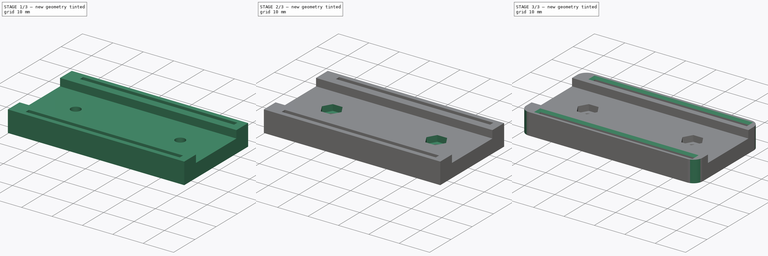
[diagram: build sequence overview — one tinted view per stage of 3, left to right]
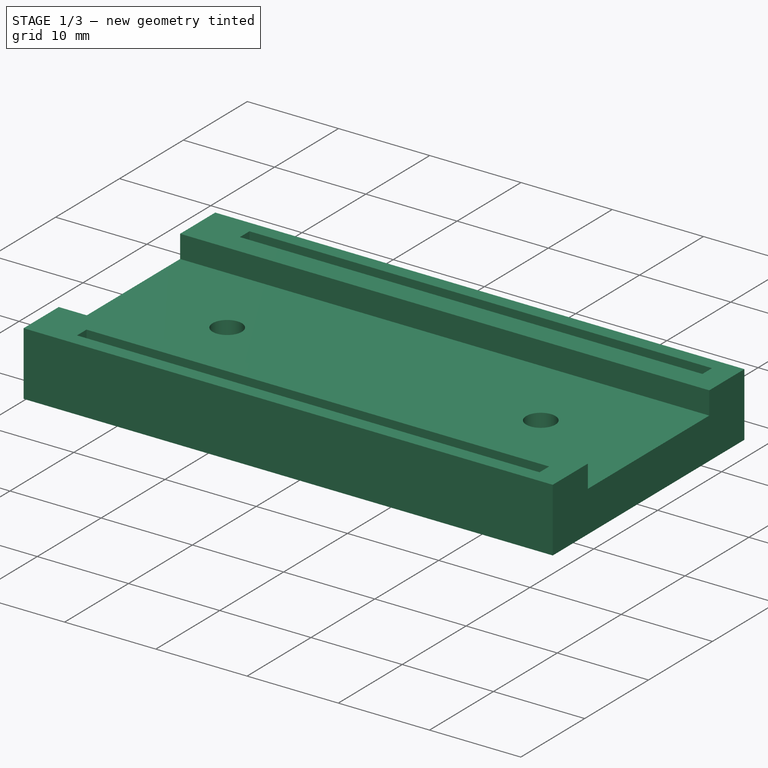
[diagram: stage 1 of 3 — iso view after this stage's code; geometry added in this stage tinted green]
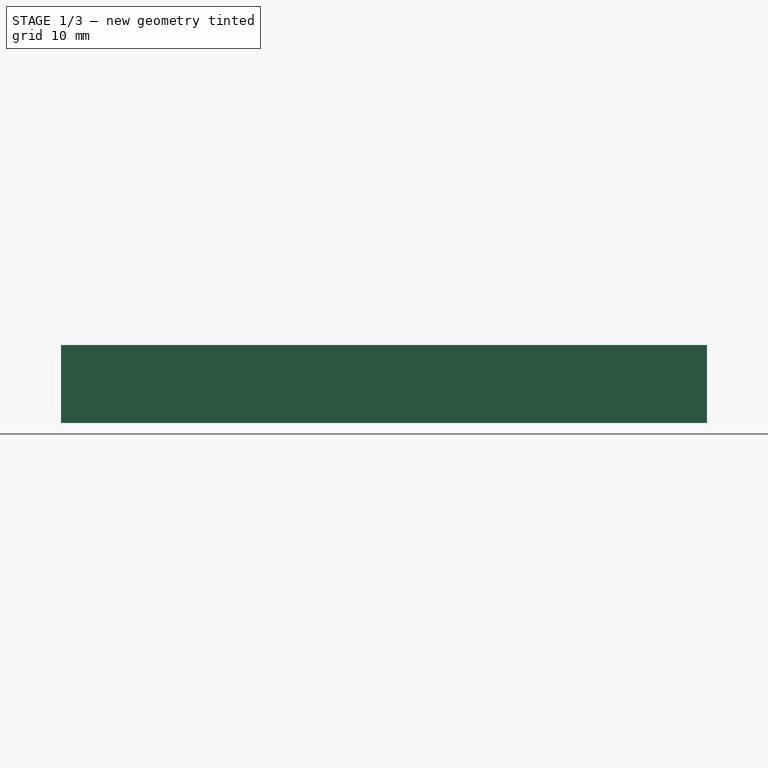
[diagram: stage 1 of 3 — front view after this stage's code; geometry added in this stage tinted green]
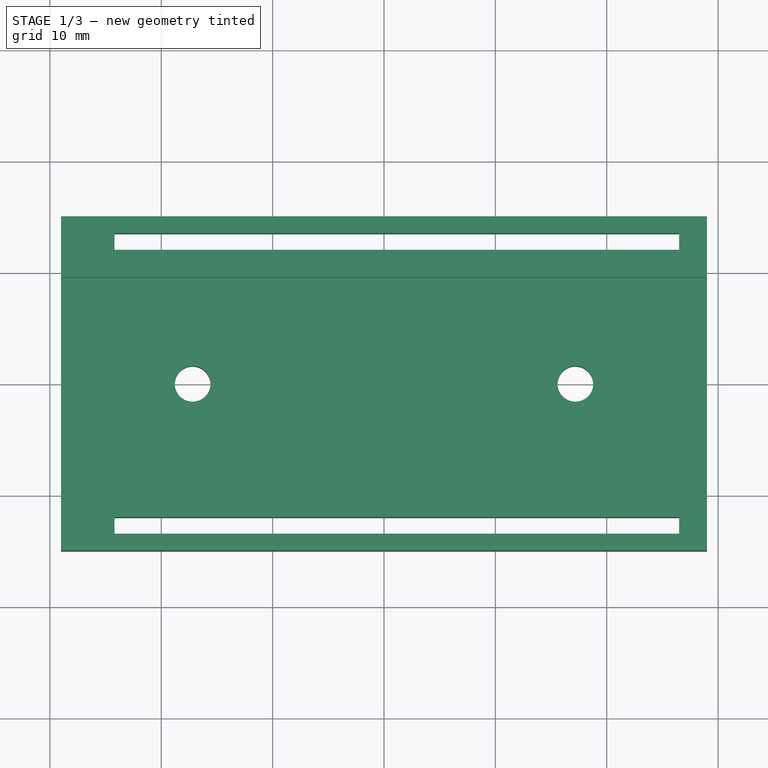
[diagram: stage 1 of 3 — top view after this stage's code; geometry added in this stage tinted green]
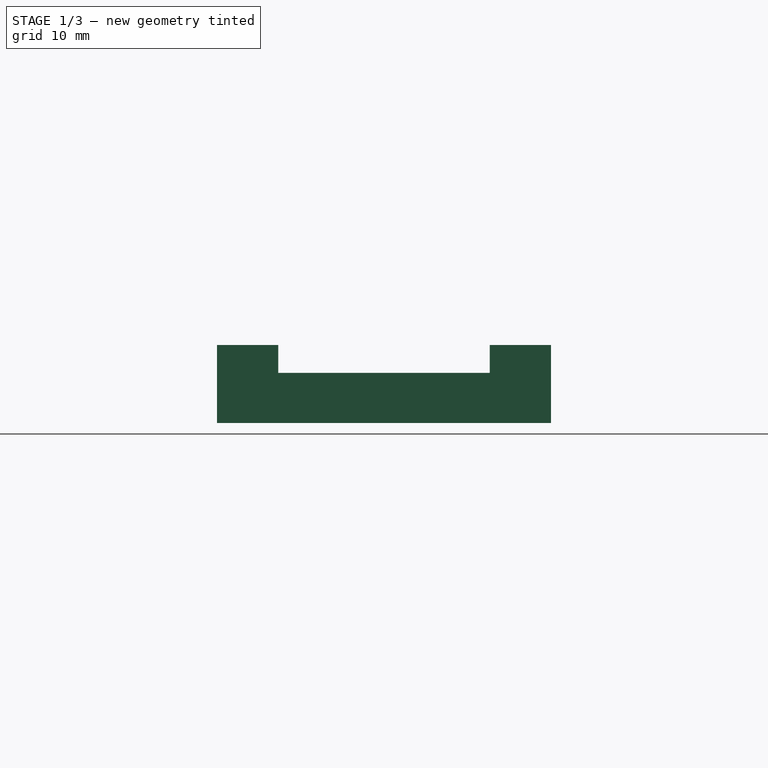
[diagram: stage 1 of 3 — right view after this stage's code; geometry added in this stage tinted green]
FCSTD DOCUMENT  (FreeCAD 0.21R33771 (Git))
Label: suporte-GPRS
License: All rights reserved
LicenseURL: https://en.wikipedia.org/wiki/All_rights_reserved
objects: Sketcher::SketchObject×3, PartDesign::Pocket×2, PartDesign::Pad×1, PartDesign::Fillet×1, PartDesign::Chamfer×1, PartDesign::Body×1
note: 14 computed .brp shape members not serialized (recipe doc carries the construction recipe); baked Part::Feature solids carry a one-line shape summary decoded from their .brp

FEATURE [Sketcher::SketchObject] Sketch
  FullyConstrained = true
  MapMode = 5
  Support = -> [XY_Plane]
  sketch-geometry (14):
    g0: LineSegment StartX=-29 StartY=15 StartZ=0 EndX=29 EndY=15 EndZ=0
    g1: LineSegment StartX=29 StartY=15 StartZ=0 EndX=29 EndY=-15 EndZ=0
    g2: LineSegment StartX=29 StartY=-15 StartZ=0 EndX=-29 EndY=-15 EndZ=0
    g3: LineSegment StartX=-29 StartY=-15 StartZ=0 EndX=-29 EndY=15 EndZ=0
    g4: LineSegment StartX=-24.2 StartY=13.5 StartZ=0 EndX=26.5 EndY=13.5 EndZ=0
    g5: LineSegment StartX=26.5 StartY=13.5 StartZ=0 EndX=26.5 EndY=12 EndZ=0
    g6: LineSegment StartX=26.5 StartY=12 StartZ=0 EndX=-24.2 EndY=12 EndZ=0
    g7: LineSegment StartX=-24.2 StartY=12 StartZ=0 EndX=-24.2 EndY=13.5 EndZ=0
    g8: LineSegment StartX=-24.2 StartY=-12 StartZ=0 EndX=26.5 EndY=-12 EndZ=0
    g9: LineSegment StartX=26.5 StartY=-12 StartZ=0 EndX=26.5 EndY=-13.5 EndZ=0
    g10: LineSegment StartX=26.5 StartY=-13.5 StartZ=0 EndX=-24.2 EndY=-13.5 EndZ=0
    g11: LineSegment StartX=-24.2 StartY=-13.5 StartZ=0 EndX=-24.2 EndY=-12 EndZ=0
    g12: Circle CenterX=-17.186 CenterY=0 CenterZ=0 NormalX=0 NormalY=0 NormalZ=1 AngleXU=0 Radius=1.6
    g13: Circle CenterX=17.186 CenterY=0 CenterZ=0 NormalX=0 NormalY=0 NormalZ=1 AngleXU=0 Radius=1.6
  constraints (38):
    c: Coincident(g0,g1)
    c: Coincident(g1,g2)
    c: Coincident(g2,g3)
    c: Coincident(g3,g0)
    c: Horizontal(g2)
    c: Vertical(g1)
    c: Coincident(g4,g5)
    c: Coincident(g5,g6)
    c: Coincident(g6,g7)
    c: Coincident(g7,g4)
    c: Horizontal(g4)
    c: Vertical(g5)
    c: Vertical(g7)
    c: Coincident(g8,g9)
    c: Coincident(g9,g10)
    c: Coincident(g10,g11)
    c: Coincident(g11,g8)
    c: Horizontal(g10)
    c: Vertical(g9)
    c: Vertical(g11)
    c: Symmetric(g0,g0,g-2)
    c: Symmetric(g2,g0,g-1)
    c: Symmetric(g4,g10,g-1)
    c: Equal(g11,g7)
    c: DistanceY(g3,g3) = 30
    c: DistanceX(g2,g2) = 58
    c: DistanceX(g8,g1) = 2.5
    c: Vertical(g5,g8)
    c: DistanceY(g5,g5) = 1.5
    c: Horizontal(g6)
    c: Horizontal(g8)
    c: DistanceX(g10,g10) = 50.7
    c: DistanceY(g8,g5) = 24
    c: Equal(g13,g12)
    c: Symmetric(g12,g13,g-2)
    c: PointOnObject(g12,g-1)
    c: Diameter(g12) = 3.2
    c: DistanceX(g12,g13) = 34.372
FEATURE [PartDesign::Pad] Pad
  Direction = (0,0,1)
  Length = 7
  Length2 = 10
  Profile = -> Sketch
  ReferenceAxis = -> Sketch [N_Axis]
  Type = 0
FEATURE [Sketcher::SketchObject] Sketch001
  ExternalGeometry = -> [Pad]
  FullyConstrained = true
  MapMode = 5
  Placement = pos=(-29,0,0) rot=(0.57735,-0.57735,-0.57735;2.0944rad)
  Support = -> [Pad]
  sketch-geometry (4):
    g0: LineSegment StartX=-9.5 StartY=7 StartZ=0 EndX=9.5 EndY=7 EndZ=0
    g1: LineSegment StartX=9.5 StartY=7 StartZ=0 EndX=9.5 EndY=4.5 EndZ=0
    g2: LineSegment StartX=9.5 StartY=4.5 StartZ=0 EndX=-9.5 EndY=4.5 EndZ=0
    g3: LineSegment StartX=-9.5 StartY=4.5 StartZ=0 EndX=-9.5 EndY=7 EndZ=0
  constraints (11):
    c: Coincident(g0,g1)
    c: Coincident(g1,g2)
    c: Coincident(g2,g3)
    c: Coincident(g3,g0)
    c: Horizontal(g0)
    c: Vertical(g1)
    c: Vertical(g3)
    c: PointOnObject(g0,g-3)
    c: Symmetric(g2,g1,g-2)
    c: DistanceY(g3,g3) = 2.5
    c: DistanceX(g-4,g0) = 2.5
FEATURE [PartDesign::Pocket] Pocket
  BaseFeature = -> Pad
  Direction = (1,0,0)
  Length = 0
  Length2 = 5
  Profile = -> Sketch001
  ReferenceAxis = -> Sketch001 [N_Axis]
  Type = 3
  UpToFace = -> Pad [Face2]
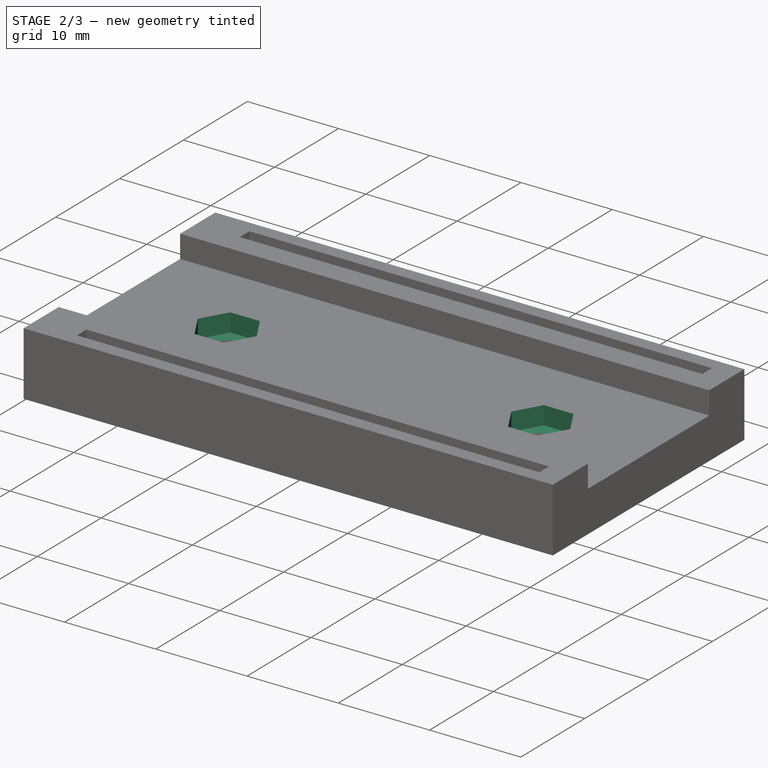
[diagram: stage 2 of 3 — iso view after this stage's code; geometry added in this stage tinted green]
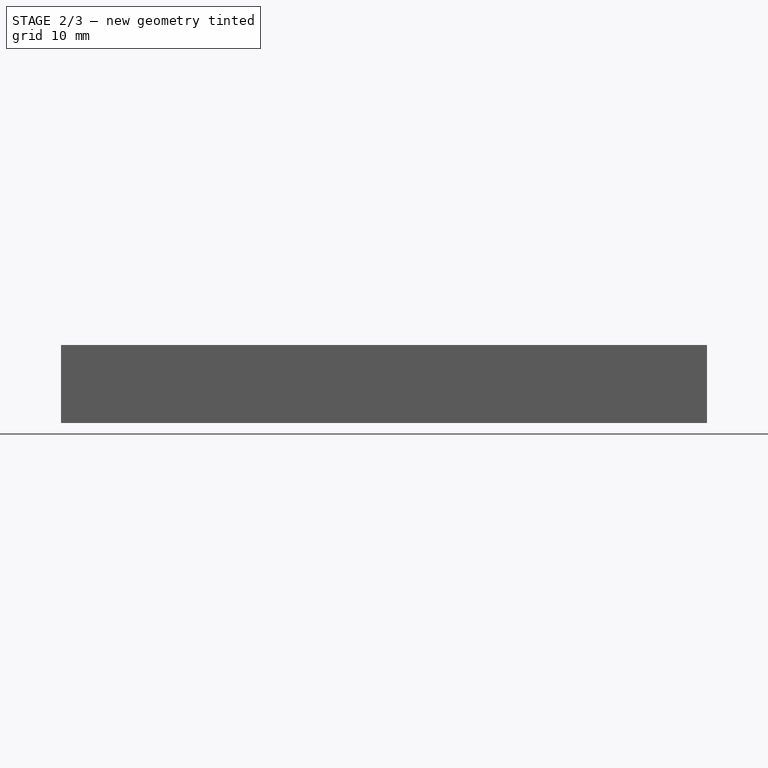
[diagram: stage 2 of 3 — front view after this stage's code; geometry added in this stage tinted green]
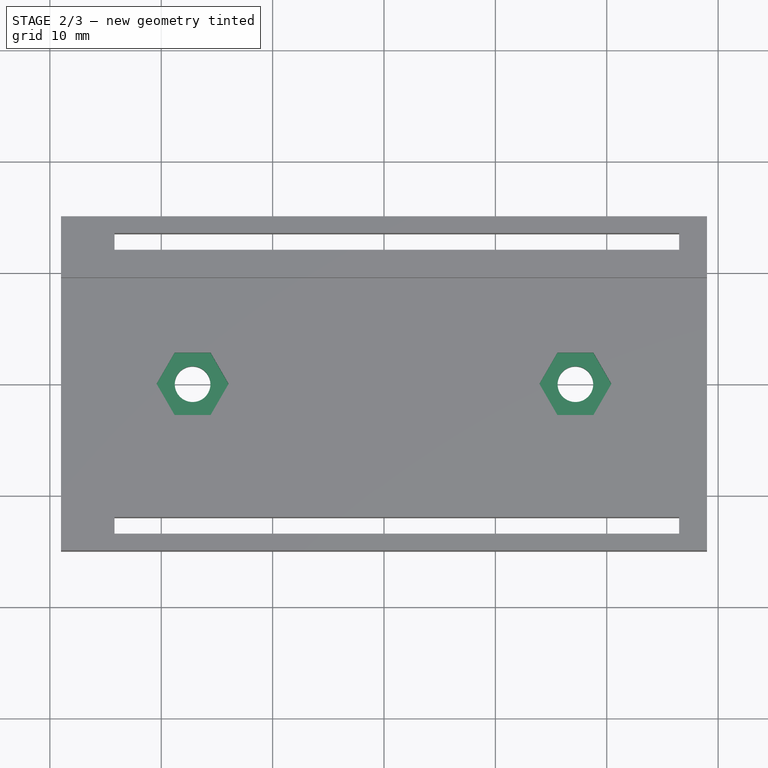
[diagram: stage 2 of 3 — top view after this stage's code; geometry added in this stage tinted green]
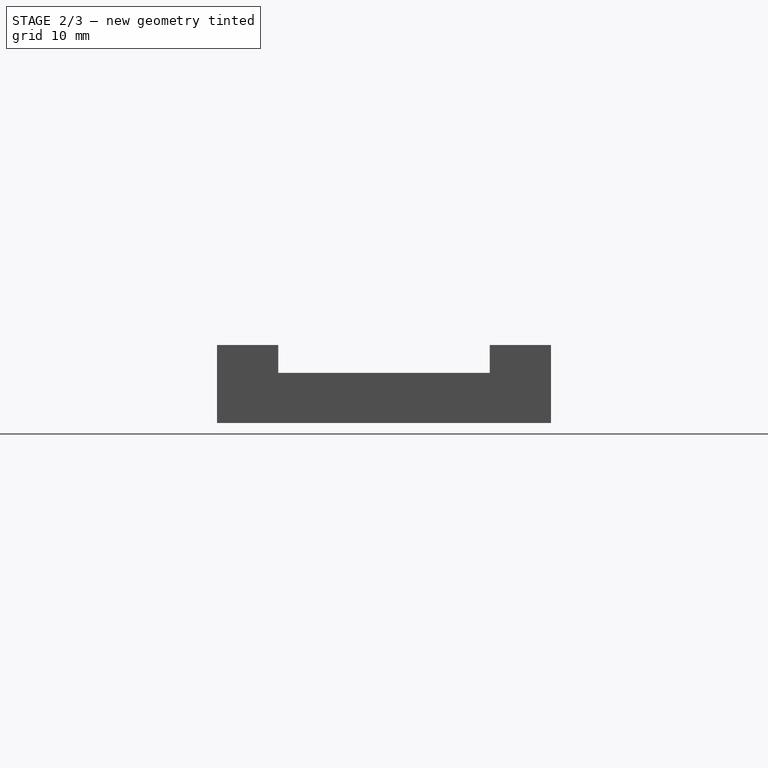
[diagram: stage 2 of 3 — right view after this stage's code; geometry added in this stage tinted green]
FEATURE [Sketcher::SketchObject] Sketch002
  ExternalGeometry = -> [Pocket]
  FullyConstrained = true
  MapMode = 5
  Placement = pos=(0,0,4.5) rot=(0,0,1;0rad)
  Support = -> [Pocket]
  sketch-geometry (14):
    g0: LineSegment StartX=-15.5694 StartY=-2.8 StartZ=0 EndX=-13.9528 EndY=1.0698e-12 EndZ=0
    g1: LineSegment StartX=-13.9528 StartY=1.0698e-12 StartZ=0 EndX=-15.5694 EndY=2.8 EndZ=0
    g2: LineSegment StartX=-15.5694 StartY=2.8 StartZ=0 EndX=-18.8026 EndY=2.8 EndZ=0
    g3: LineSegment StartX=-18.8026 StartY=2.8 StartZ=0 EndX=-20.4192 EndY=2.2773e-12 EndZ=0
    g4: LineSegment StartX=-20.4192 StartY=2.2773e-12 StartZ=0 EndX=-18.8026 EndY=-2.8 EndZ=0
    g5: LineSegment StartX=-18.8026 StartY=-2.8 StartZ=0 EndX=-15.5694 EndY=-2.8 EndZ=0
    g6: Circle CenterX=-17.186 CenterY=0 CenterZ=0 NormalX=0 NormalY=0 NormalZ=1 AngleXU=0 Radius=3.23316
    g7: LineSegment StartX=13.9528 StartY=4e-16 StartZ=0 EndX=15.5694 EndY=-2.8 EndZ=0
    g8: LineSegment StartX=15.5694 StartY=-2.8 StartZ=0 EndX=18.8026 EndY=-2.8 EndZ=0
    g9: LineSegment StartX=18.8026 StartY=-2.8 StartZ=0 EndX=20.4192 EndY=0 EndZ=0
    g10: LineSegment StartX=20.4192 StartY=0 StartZ=0 EndX=18.8026 EndY=2.8 EndZ=0
    g11: LineSegment StartX=18.8026 StartY=2.8 StartZ=0 EndX=15.5694 EndY=2.8 EndZ=0
    g12: LineSegment StartX=15.5694 StartY=2.8 StartZ=0 EndX=13.9528 EndY=4e-16 EndZ=0
    g13: Circle CenterX=17.186 CenterY=0 CenterZ=0 NormalX=0 NormalY=0 NormalZ=1 AngleXU=0 Radius=3.23316
  constraints (32):
    c: Coincident(g0,g1)
    c: Coincident(g1,g2)
    c: Coincident(g2,g3)
    c: Coincident(g3,g4)
    c: Coincident(g4,g5)
    c: Coincident(g5,g0)
    c: Equal(g0, g1-g5) x5
    c: PointOnObject(g0,g6)
    c: PointOnObject(g1,g6)
    c: PointOnObject(g2,g6)
    c: PointOnObject(g3,g6)
    c: PointOnObject(g4,g6)
    c: PointOnObject(g5,g6)
    c: Coincident(g6,g-3)
    c: Coincident(g7,g8)
    c: Coincident(g8,g9)
    c: Coincident(g9,g10)
    c: Coincident(g10,g11)
    c: Coincident(g11,g12)
    c: Coincident(g12,g7)
    c: Equal(g7, g8-g12) x5
    c: PointOnObject(g7,g13)
    c: PointOnObject(g8,g13)
    c: PointOnObject(g9,g13)
    c: PointOnObject(g10,g13)
    c: PointOnObject(g11,g13)
    c: PointOnObject(g12,g13)
    c: Coincident(g13,g-4)
    c: Horizontal(g11)
    c: Horizontal(g2)
    c: Equal(g13,g6)
    c: DistanceY(g4,g2) = 5.6
FEATURE [PartDesign::Pocket] Pocket001
  BaseFeature = -> Pocket
  Direction = (0,0,-1)
  Length = 2
  Length2 = 5
  Profile = -> Sketch002
  ReferenceAxis = -> Sketch002 [N_Axis]
  Type = 0
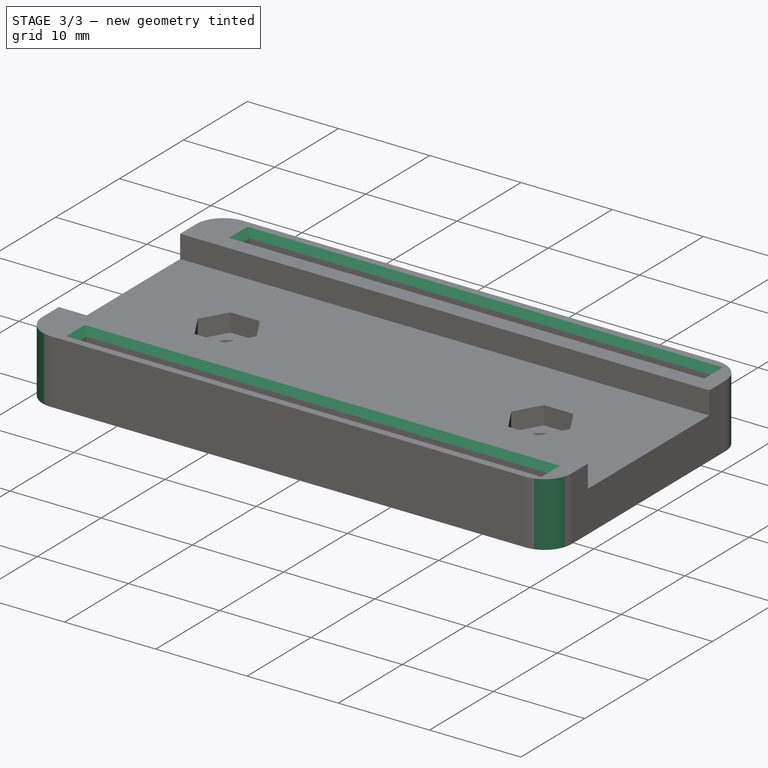
[diagram: stage 3 of 3 — iso view after this stage's code; geometry added in this stage tinted green]
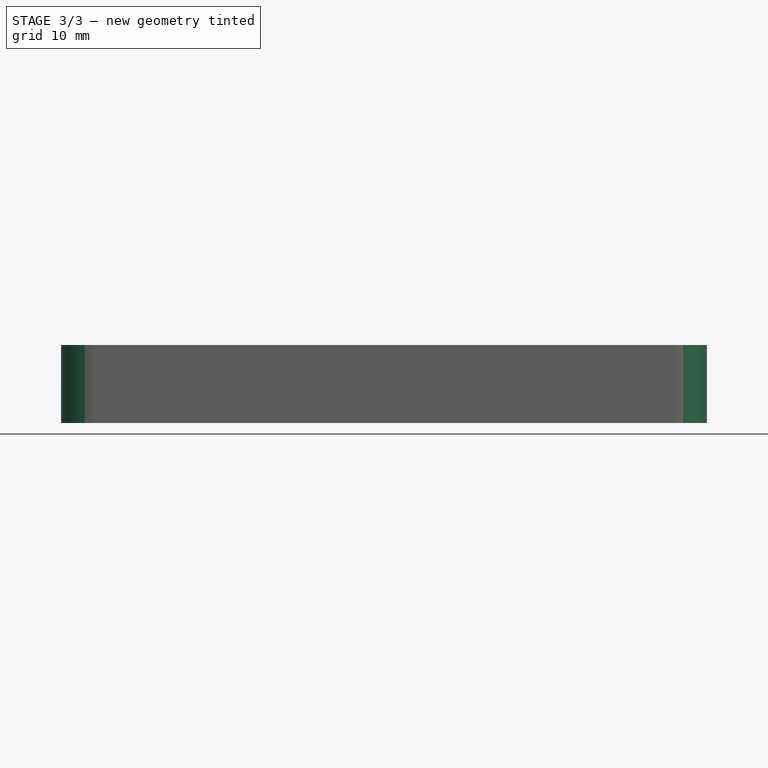
[diagram: stage 3 of 3 — front view after this stage's code; geometry added in this stage tinted green]
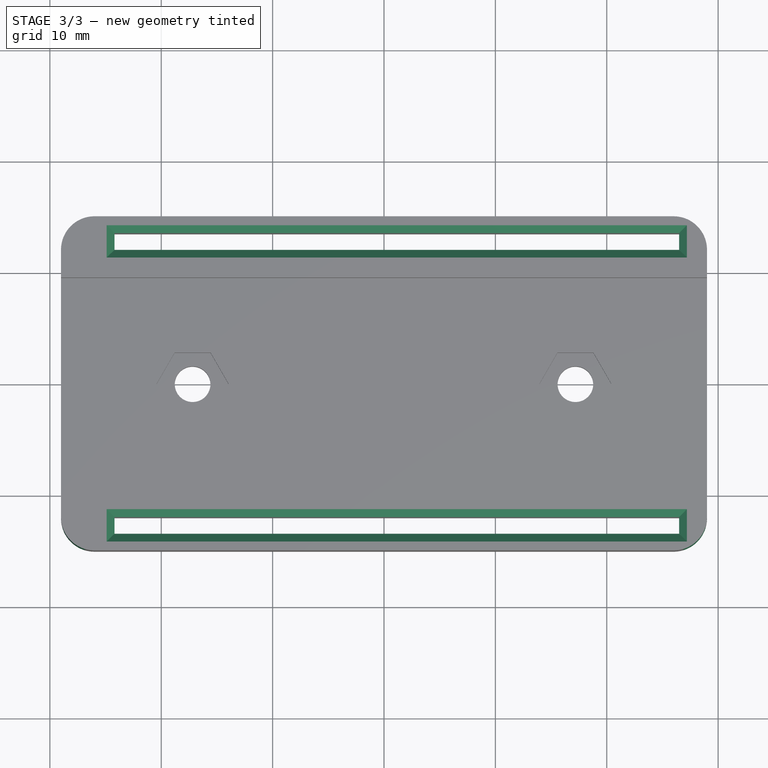
[diagram: stage 3 of 3 — top view after this stage's code; geometry added in this stage tinted green]
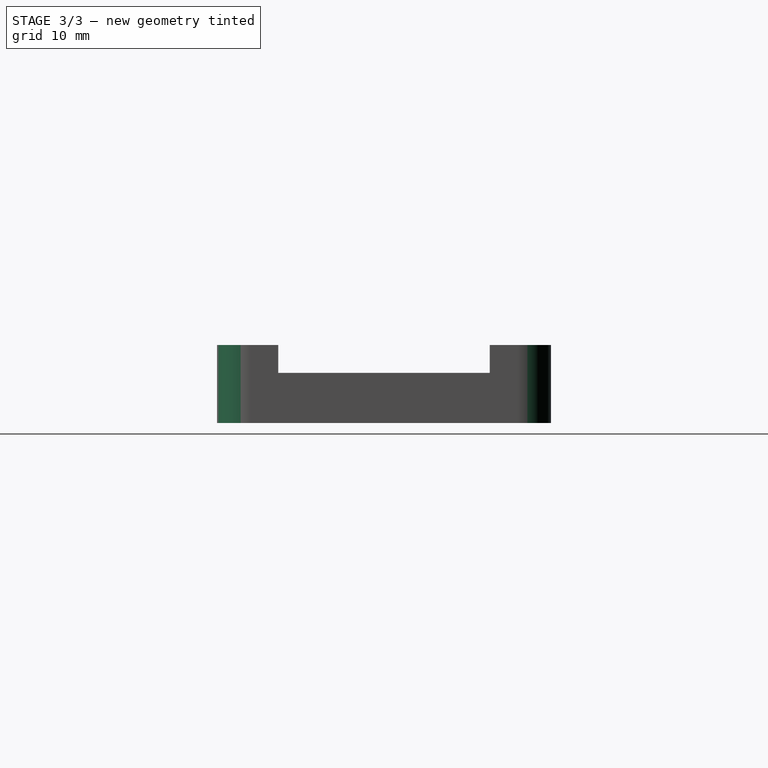
[diagram: stage 3 of 3 — right view after this stage's code; geometry added in this stage tinted green]
FEATURE [PartDesign::Fillet] Fillet
  Base = -> Pocket001 [Edge11,Edge1,Edge13,Edge2]
  BaseFeature = -> Pocket001
  Radius = 3
  SupportTransform = false
  UseAllEdges = false
FEATURE [PartDesign::Chamfer] Chamfer
  Angle = 45
  Base = -> Fillet [Edge50,Edge54,Edge52,Edge55,Edge29,Edge32,Edge30,Edge31]
  BaseFeature = -> Fillet
  ChamferType = 0
  FlipDirection = false
  Size = 0.7
  Size2 = 1
  SupportTransform = false
  UseAllEdges = false
FEATURE [PartDesign::Body] Body
  Group = -> [Sketch,Pad,Sketch001,Pocket,Sketch002,Pocket001,Fillet,Chamfer]
  Origin = -> Origin
  Tip = -> Chamfer
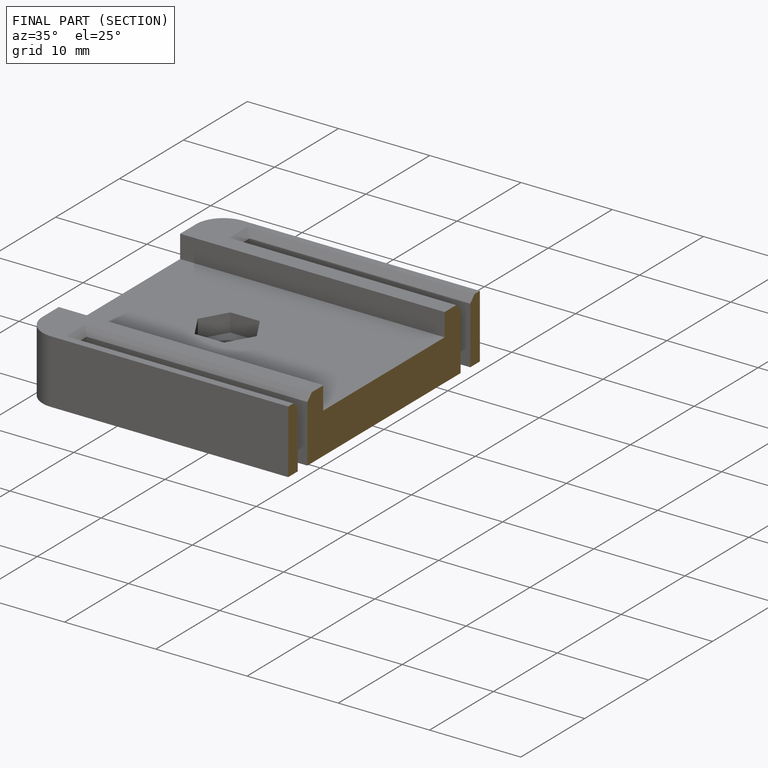
[diagram: finished part — half-section view (interior)]
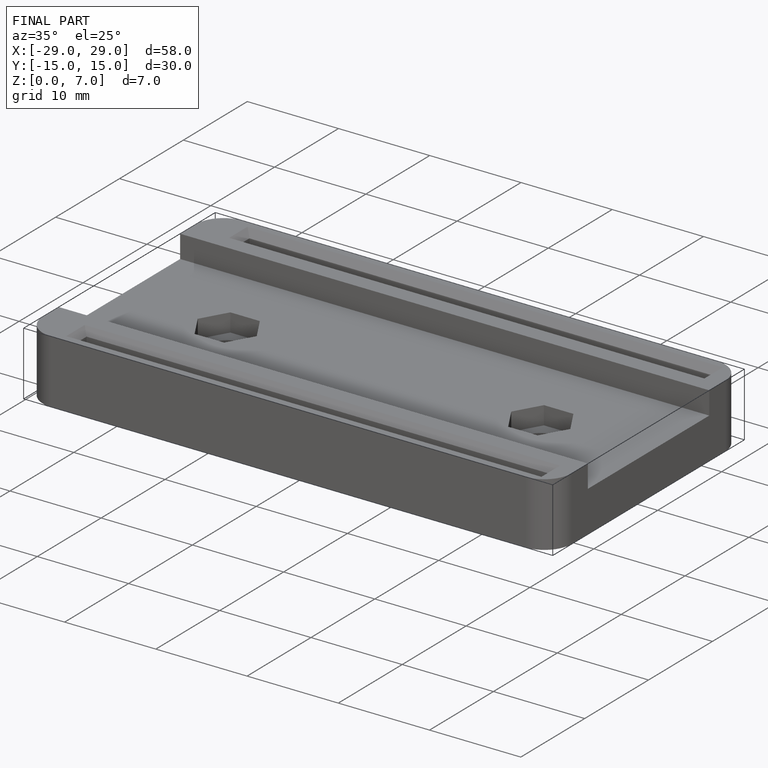
[diagram: finished part — iso view with bounding-box wireframe]
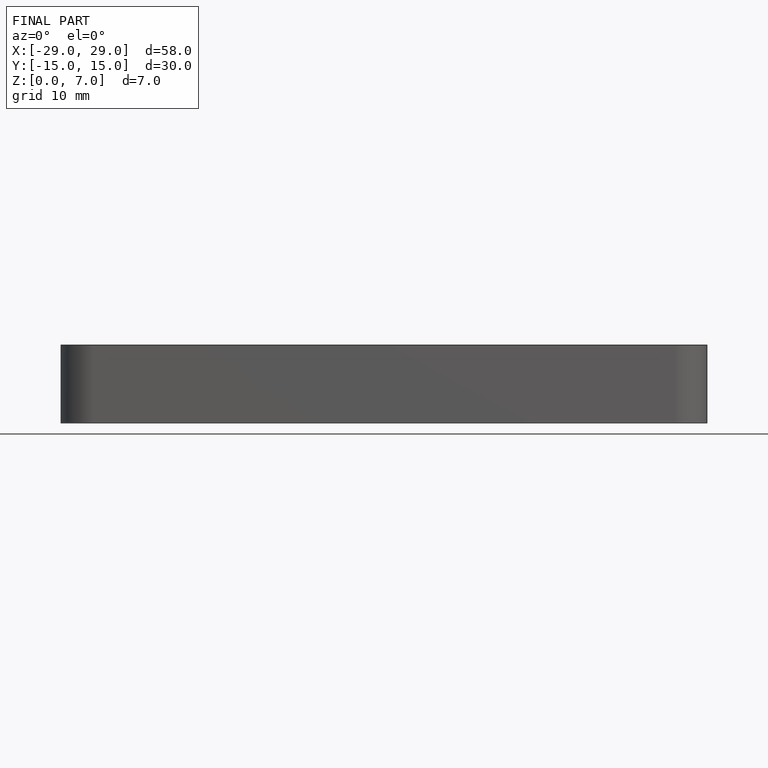
[diagram: finished part — front view with bounding-box wireframe]
